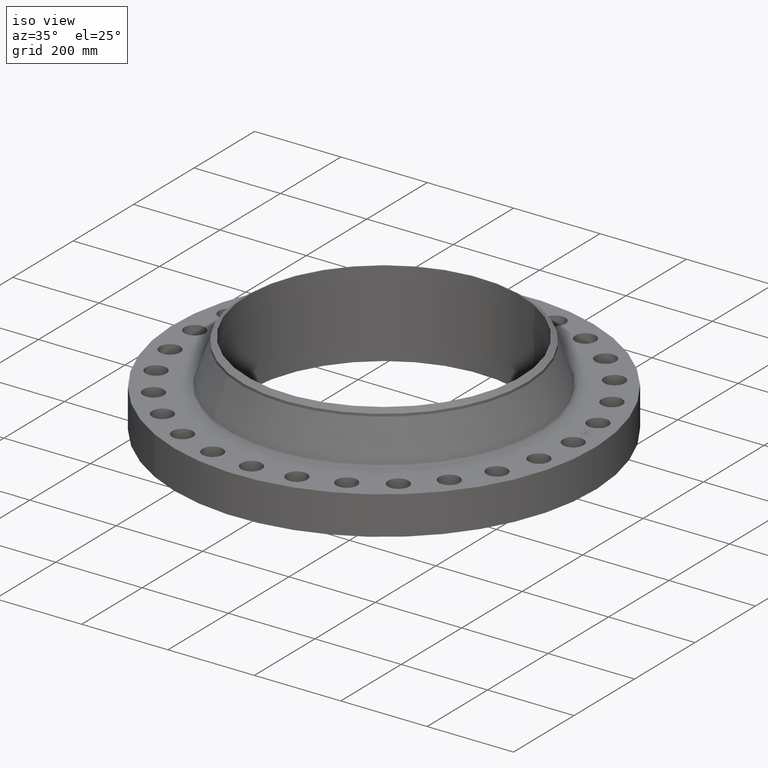
[diagram: clean part render]
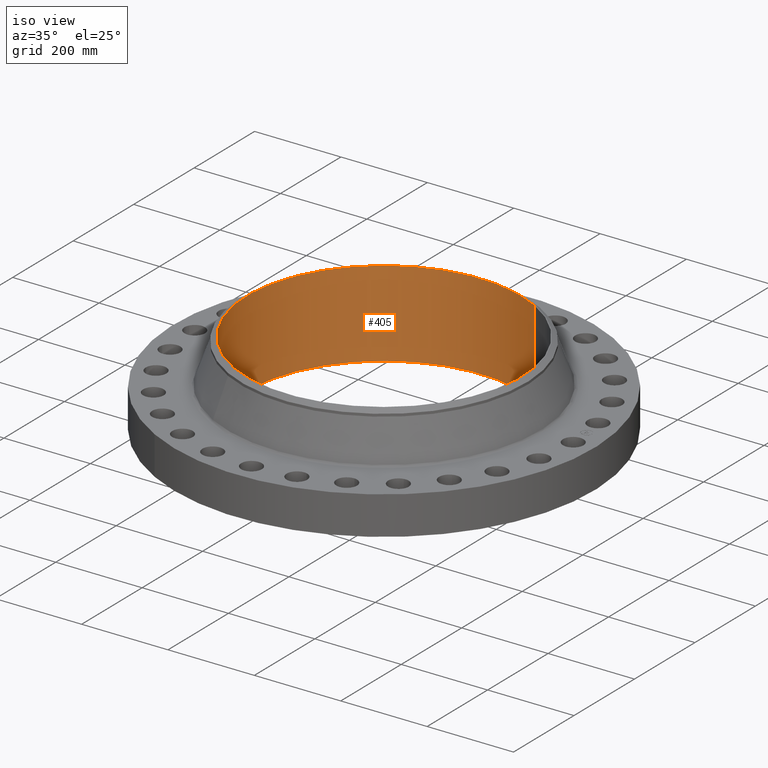
[diagram: tour spotlight — one face highlighted and labeled with its STEP entity id]
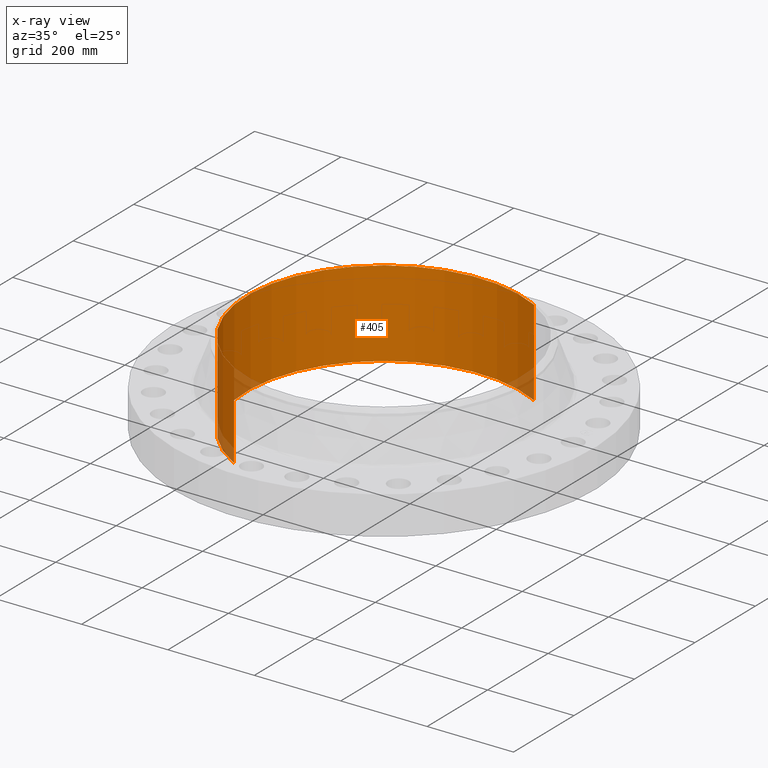
[diagram: x-ray of the same camera — body ghosted, this tour face saturated]
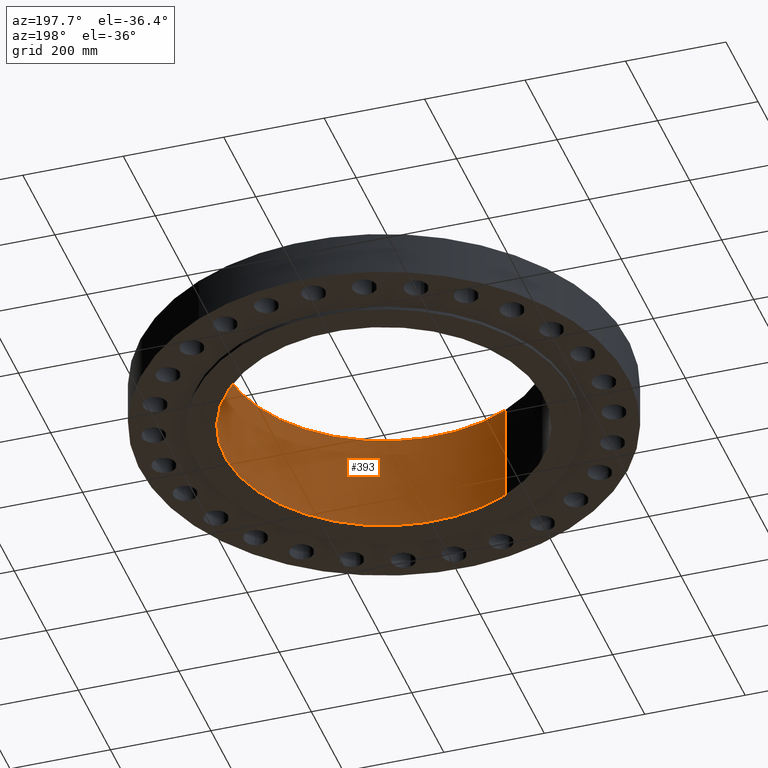
[diagram: tour spotlight — one face highlighted and labeled with its STEP entity id]
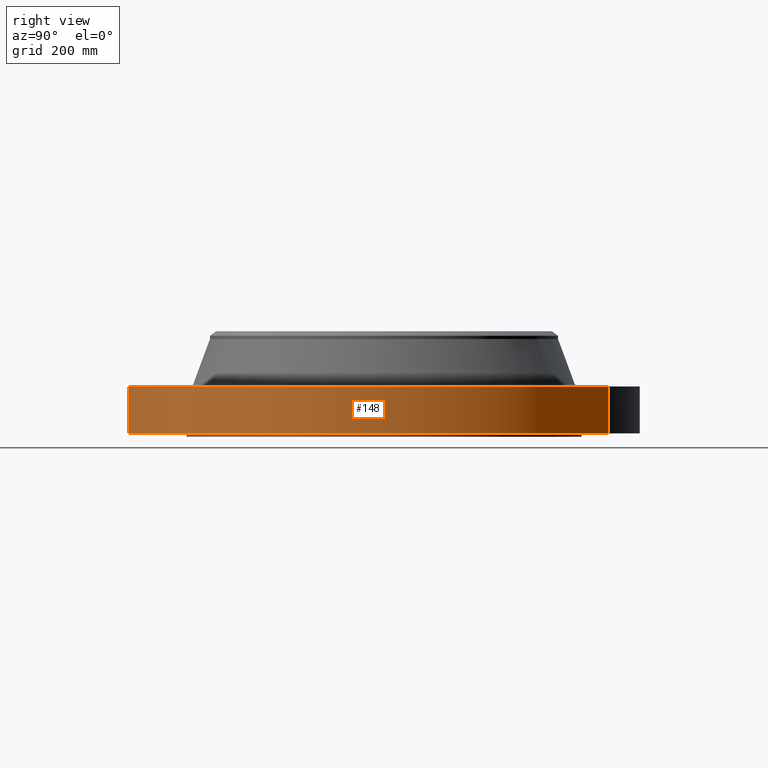
[diagram: tour spotlight — one face highlighted and labeled with its STEP entity id]
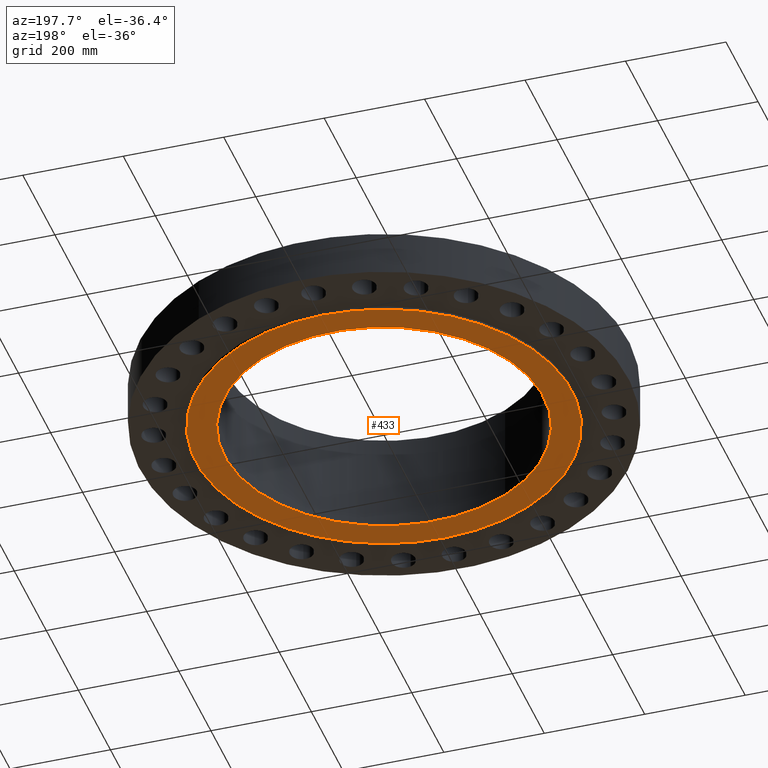
[diagram: tour spotlight — one face highlighted and labeled with its STEP entity id]
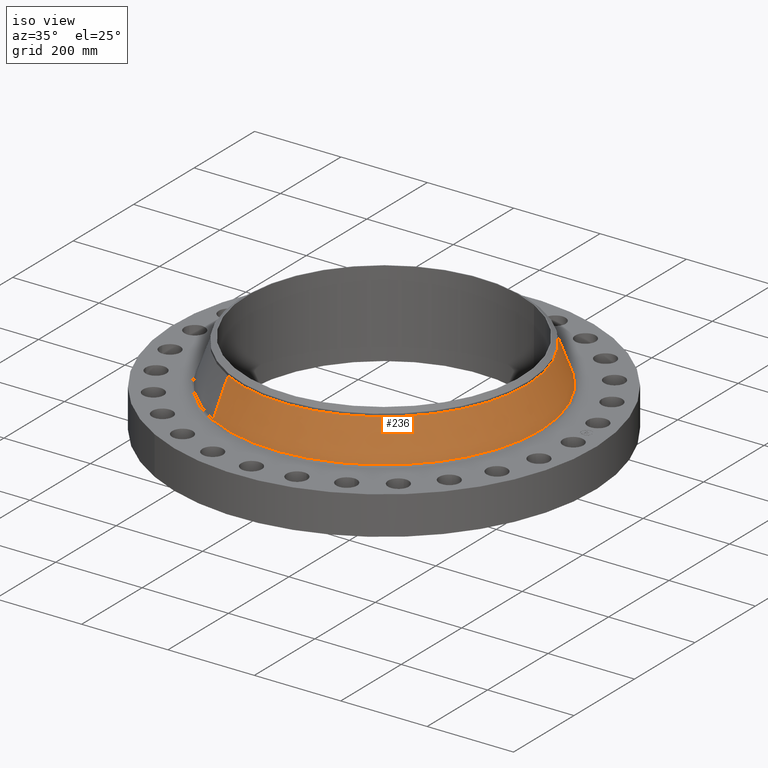
[diagram: tour spotlight — one face highlighted and labeled with its STEP entity id]
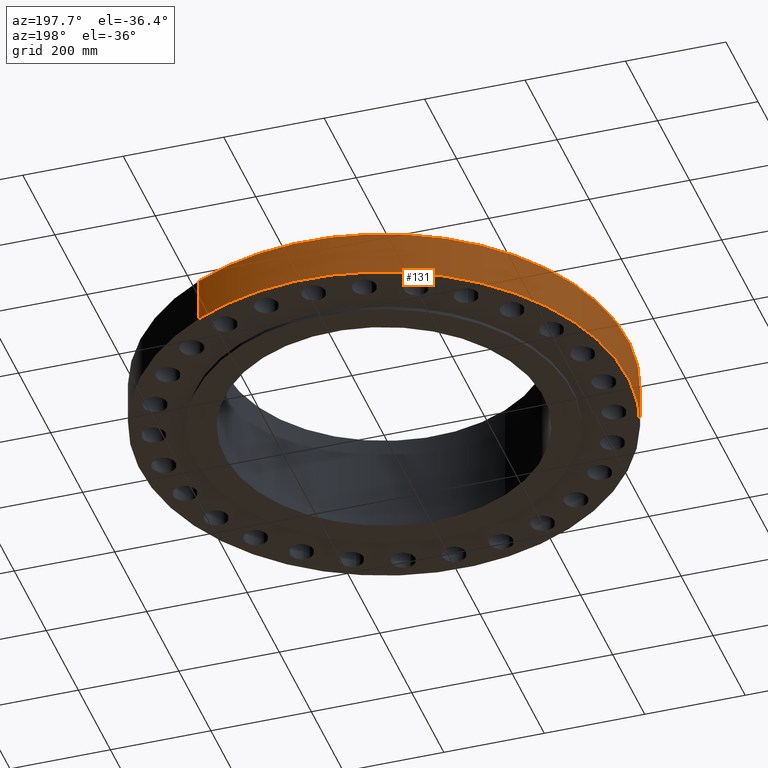
[diagram: tour spotlight — one face highlighted and labeled with its STEP entity id]
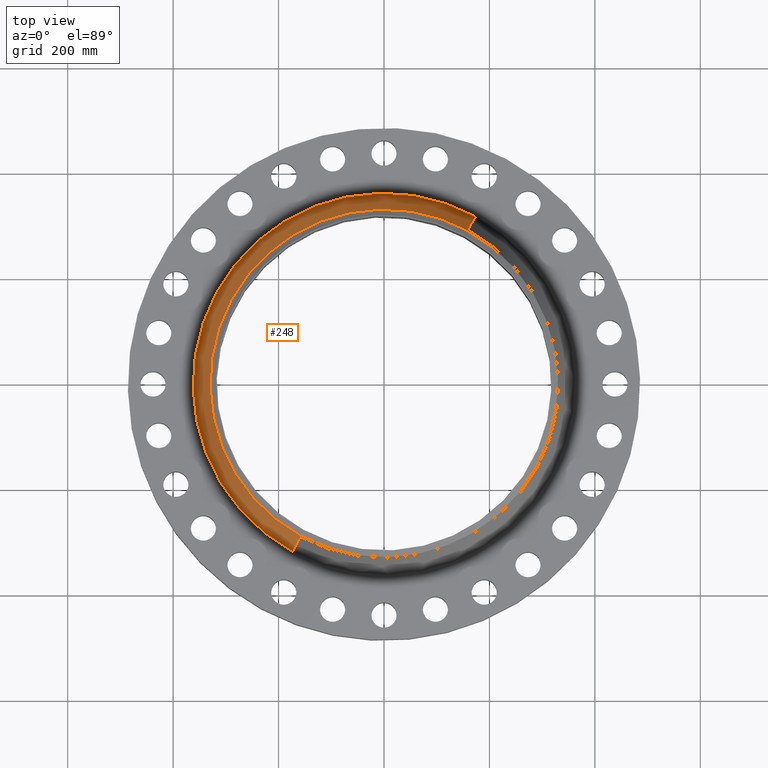
[diagram: tour spotlight — one face highlighted and labeled with its STEP entity id]
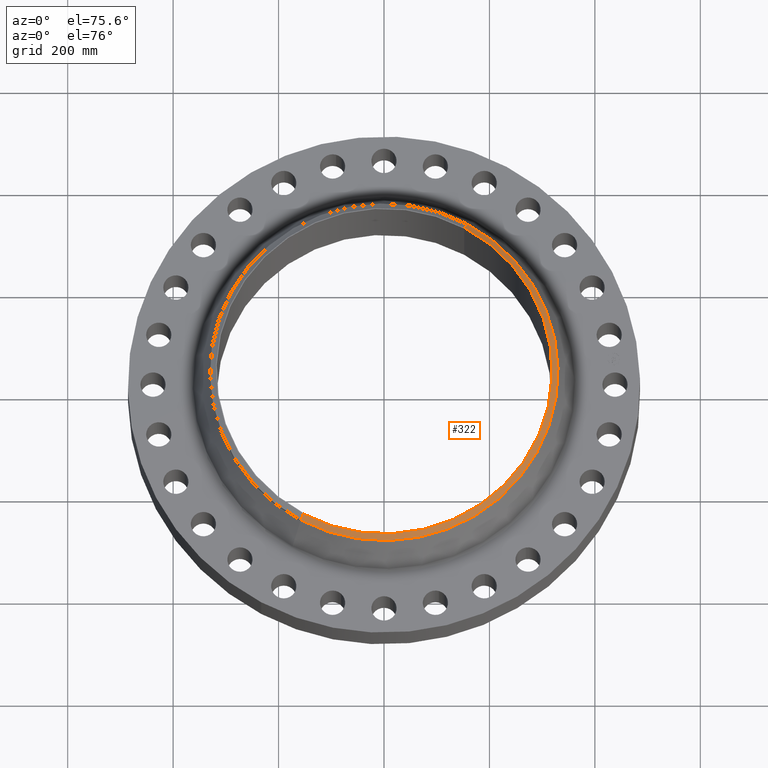
[diagram: tour spotlight — one face highlighted and labeled with its STEP entity id]
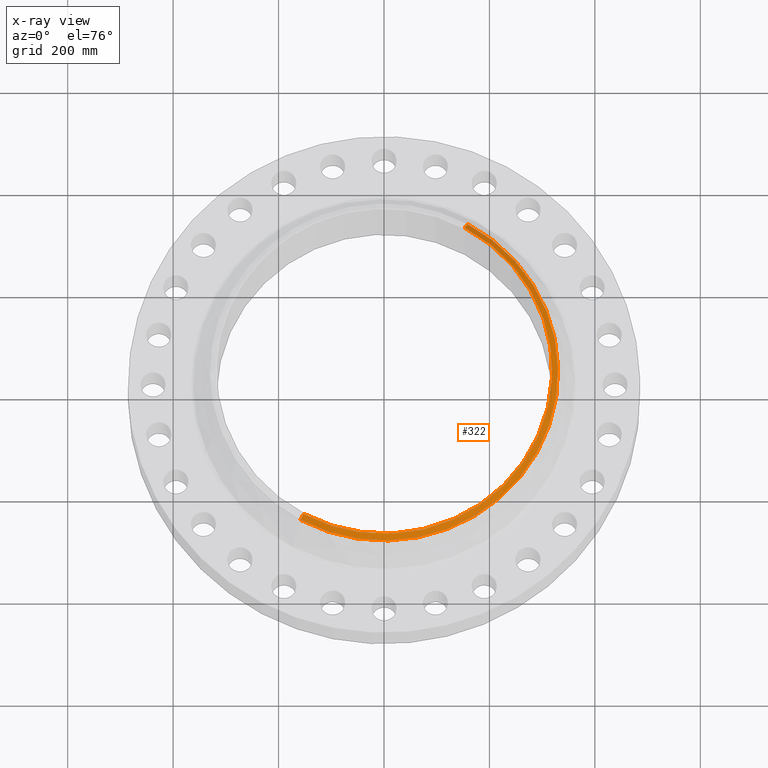
[diagram: x-ray of the same camera — body ghosted, this tour face saturated]
A machine part: a face-by-face anatomy tour. The part has 459 B-rep faces; the first image is the clean iso view, then the 8 largest visible faces are spotlighted one at a time (largest first), each with its STEP entity span.

Face 1 — iso view, entity #405. An x-ray twin of the same camera follows (body ghosted, this face saturated) — the face is partly hidden behind the body. In plain terms, the highlighted cylindrical surface (partial cylindrical patch) has radius 317.5 mm, axis along (0, 0, -1).
Definition (entity closure, byte-faithful):
#346=AXIS2_PLACEMENT_3D('Circle Axis2P3D',#344,#345,$) ;
#366=AXIS2_PLACEMENT_3D('Cylinder Axis2P3D',#363,#364,#365) ;
#396=AXIS2_PLACEMENT_3D('Circle Axis2P3D',#394,#395,$) ;
#344=CARTESIAN_POINT('Axis2P3D Location',(3.35689481461E-015,5.59482469102E-016,7.62000000003)) ;
#348=CARTESIAN_POINT('Vertex',(-5.99281923258,-10.9697820237,7.62000000003)) ;
#350=CARTESIAN_POINT('Vertex',(5.99281923258,10.9697820237,7.62000000003)) ;
#363=CARTESIAN_POINT('Axis2P3D Location',(0.,0.,3.73500000001)) ;
#368=CARTESIAN_POINT('Line Origine',(5.99281923258,10.9697820237,3.68500000001)) ;
#372=CARTESIAN_POINT('Vertex',(5.99281923258,10.9697820237,-0.250000000001)) ;
#379=CARTESIAN_POINT('Vertex',(-5.99281923258,-10.9697820237,-0.250000000001)) ;
#382=CARTESIAN_POINT('Line Origine',(-5.99281923258,-10.9697820237,3.68500000001)) ;
#394=CARTESIAN_POINT('Axis2P3D Location',(0.,0.,-0.250000000001)) ;
#345=DIRECTION('Axis2P3D Direction',(0.,-0.,-0.0393700787402)) ;
#364=DIRECTION('Axis2P3D Direction',(0.,0.,-0.0393700787402)) ;
#365=DIRECTION('Axis2P3D XDirection',(-0.0188750212049,-0.0345504945626,0.)) ;
#369=DIRECTION('Vector Direction',(0.,0.,-0.0393700787402)) ;
#383=DIRECTION('Vector Direction',(0.,0.,-0.0393700787402)) ;
#395=DIRECTION('Axis2P3D Direction',(0.,0.,-0.0393700787402)) ;
#370=VECTOR('Line Direction',#369,0.0393700787402) ;
#384=VECTOR('Line Direction',#383,0.0393700787402) ;
#400=ORIENTED_EDGE('',*,*,#386,.T.) ;
#401=ORIENTED_EDGE('',*,*,#398,.T.) ;
#402=ORIENTED_EDGE('',*,*,#374,.F.) ;
#403=ORIENTED_EDGE('',*,*,#352,.F.) ;
#405=ADVANCED_FACE('PartBody',(#404),#367,.F.) ;
#347=CIRCLE('generated circle',#346,12.5000000001) ;
#397=CIRCLE('generated circle',#396,12.5000000001) ;
#367=CYLINDRICAL_SURFACE('generated cylinder',#366,12.5000000001) ;
#352=EDGE_CURVE('',#349,#351,#347,.T.) ;
#374=EDGE_CURVE('',#351,#373,#371,.T.) ;
#386=EDGE_CURVE('',#349,#380,#385,.T.) ;
#398=EDGE_CURVE('',#380,#373,#397,.T.) ;
#399=EDGE_LOOP('',(#400,#401,#402,#403)) ;
#404=FACE_OUTER_BOUND('',#399,.T.) ;
#371=LINE('Line',#368,#370) ;
#385=LINE('Line',#382,#384) ;
#349=VERTEX_POINT('',#348) ;
#351=VERTEX_POINT('',#350) ;
#373=VERTEX_POINT('',#372) ;
#380=VERTEX_POINT('',#379) ;

Face 2 — auxiliary view, entity #393. In plain terms, the highlighted cylindrical surface (partial cylindrical patch) has radius 317.5 mm, axis along (0, 0, -1).
Definition (entity closure, byte-faithful):
#355=AXIS2_PLACEMENT_3D('Circle Axis2P3D',#353,#354,$) ;
#366=AXIS2_PLACEMENT_3D('Cylinder Axis2P3D',#363,#364,#365) ;
#377=AXIS2_PLACEMENT_3D('Circle Axis2P3D',#375,#376,$) ;
#348=CARTESIAN_POINT('Vertex',(-5.99281923258,-10.9697820237,7.62000000003)) ;
#350=CARTESIAN_POINT('Vertex',(5.99281923258,10.9697820237,7.62000000003)) ;
#353=CARTESIAN_POINT('Axis2P3D Location',(-3.35689481461E-015,-2.51767111096E-015,7.62000000003)) ;
#363=CARTESIAN_POINT('Axis2P3D Location',(0.,0.,3.73500000001)) ;
#368=CARTESIAN_POINT('Line Origine',(5.99281923258,10.9697820237,3.68500000001)) ;
#372=CARTESIAN_POINT('Vertex',(5.99281923258,10.9697820237,-0.250000000001)) ;
#375=CARTESIAN_POINT('Axis2P3D Location',(0.,0.,-0.250000000001)) ;
#379=CARTESIAN_POINT('Vertex',(-5.99281923258,-10.9697820237,-0.250000000001)) ;
#382=CARTESIAN_POINT('Line Origine',(-5.99281923258,-10.9697820237,3.68500000001)) ;
#354=DIRECTION('Axis2P3D Direction',(0.,-0.,-0.0393700787402)) ;
#364=DIRECTION('Axis2P3D Direction',(0.,0.,-0.0393700787402)) ;
#365=DIRECTION('Axis2P3D XDirection',(-0.0188750212049,-0.0345504945626,0.)) ;
#369=DIRECTION('Vector Direction',(0.,0.,-0.0393700787402)) ;
#376=DIRECTION('Axis2P3D Direction',(0.,0.,-0.0393700787402)) ;
#383=DIRECTION('Vector Direction',(0.,0.,-0.0393700787402)) ;
#370=VECTOR('Line Direction',#369,0.0393700787402) ;
#384=VECTOR('Line Direction',#383,0.0393700787402) ;
#388=ORIENTED_EDGE('',*,*,#374,.T.) ;
#389=ORIENTED_EDGE('',*,*,#381,.T.) ;
#390=ORIENTED_EDGE('',*,*,#386,.F.) ;
#391=ORIENTED_EDGE('',*,*,#357,.F.) ;
#393=ADVANCED_FACE('PartBody',(#392),#367,.F.) ;
#356=CIRCLE('generated circle',#355,12.5000000001) ;
#378=CIRCLE('generated circle',#377,12.5000000001) ;
#367=CYLINDRICAL_SURFACE('generated cylinder',#366,12.5000000001) ;
#357=EDGE_CURVE('',#351,#349,#356,.T.) ;
#374=EDGE_CURVE('',#351,#373,#371,.T.) ;
#381=EDGE_CURVE('',#373,#380,#378,.T.) ;
#386=EDGE_CURVE('',#349,#380,#385,.T.) ;
#387=EDGE_LOOP('',(#388,#389,#390,#391)) ;
#392=FACE_OUTER_BOUND('',#387,.T.) ;
#371=LINE('Line',#368,#370) ;
#385=LINE('Line',#382,#384) ;
#349=VERTEX_POINT('',#348) ;
#351=VERTEX_POINT('',#350) ;
#373=VERTEX_POINT('',#372) ;
#380=VERTEX_POINT('',#379) ;

Face 3 — right view, entity #148. In plain terms, the highlighted cylindrical surface (partial cylindrical patch) has radius 485.775 mm, axis along (0, 0, -1).
Definition (entity closure, byte-faithful):
#95=AXIS2_PLACEMENT_3D('Cylinder Axis2P3D',#92,#93,#94) ;
#134=AXIS2_PLACEMENT_3D('Circle Axis2P3D',#132,#133,$) ;
#139=AXIS2_PLACEMENT_3D('Circle Axis2P3D',#137,#138,$) ;
#92=CARTESIAN_POINT('Axis2P3D Location',(0.,0.,3.73500000001)) ;
#101=CARTESIAN_POINT('Vertex',(-9.16901342584,-16.7837664962,2.23792987641E-015)) ;
#103=CARTESIAN_POINT('Vertex',(9.16901342584,16.7837664962,2.23792987641E-015)) ;
#106=CARTESIAN_POINT('Line Origine',(-9.16901342584,-16.7837664962,1.75000000001)) ;
#110=CARTESIAN_POINT('Vertex',(-9.16901342584,-16.7837664962,3.50000000001)) ;
#117=CARTESIAN_POINT('Vertex',(9.16901342584,16.7837664962,3.50000000001)) ;
#120=CARTESIAN_POINT('Line Origine',(9.16901342584,16.7837664962,1.75000000001)) ;
#132=CARTESIAN_POINT('Axis2P3D Location',(0.,0.,2.23792987641E-015)) ;
#137=CARTESIAN_POINT('Axis2P3D Location',(0.,0.,3.50000000001)) ;
#93=DIRECTION('Axis2P3D Direction',(0.,0.,-0.0393700787402)) ;
#94=DIRECTION('Axis2P3D XDirection',(0.0188750212049,0.0345504945626,0.)) ;
#107=DIRECTION('Vector Direction',(0.,0.,-0.0393700787402)) ;
#121=DIRECTION('Vector Direction',(0.,0.,-0.0393700787402)) ;
#133=DIRECTION('Axis2P3D Direction',(0.,0.,-0.0393700787402)) ;
#138=DIRECTION('Axis2P3D Direction',(0.,0.,-0.0393700787402)) ;
#108=VECTOR('Line Direction',#107,0.0393700787402) ;
#122=VECTOR('Line Direction',#121,0.0393700787402) ;
#143=ORIENTED_EDGE('',*,*,#136,.F.) ;
#144=ORIENTED_EDGE('',*,*,#124,.T.) ;
#145=ORIENTED_EDGE('',*,*,#141,.T.) ;
#146=ORIENTED_EDGE('',*,*,#112,.F.) ;
#148=ADVANCED_FACE('PartBody',(#147),#96,.T.) ;
#135=CIRCLE('generated circle',#134,19.1250000001) ;
#140=CIRCLE('generated circle',#139,19.1250000001) ;
#96=CYLINDRICAL_SURFACE('generated cylinder',#95,19.1250000001) ;
#112=EDGE_CURVE('',#102,#111,#109,.F.) ;
#124=EDGE_CURVE('',#104,#118,#123,.F.) ;
#136=EDGE_CURVE('',#104,#102,#135,.T.) ;
#141=EDGE_CURVE('',#118,#111,#140,.T.) ;
#142=EDGE_LOOP('',(#143,#144,#145,#146)) ;
#147=FACE_OUTER_BOUND('',#142,.T.) ;
#109=LINE('Line',#106,#108) ;
#123=LINE('Line',#120,#122) ;
#102=VERTEX_POINT('',#101) ;
#104=VERTEX_POINT('',#103) ;
#111=VERTEX_POINT('',#110) ;
#118=VERTEX_POINT('',#117) ;

Face 4 — auxiliary view, entity #433. In plain terms, the highlighted planar face has unit normal (0, 0, -1).
Definition (entity closure, byte-faithful):
#377=AXIS2_PLACEMENT_3D('Circle Axis2P3D',#375,#376,$) ;
#396=AXIS2_PLACEMENT_3D('Circle Axis2P3D',#394,#395,$) ;
#409=AXIS2_PLACEMENT_3D('Plane Axis2P3D',#406,#407,#408) ;
#413=AXIS2_PLACEMENT_3D('Circle Axis2P3D',#411,#412,$) ;
#422=AXIS2_PLACEMENT_3D('Circle Axis2P3D',#420,#421,$) ;
#372=CARTESIAN_POINT('Vertex',(5.99281923258,10.9697820237,-0.250000000001)) ;
#375=CARTESIAN_POINT('Axis2P3D Location',(0.,0.,-0.250000000001)) ;
#379=CARTESIAN_POINT('Vertex',(-5.99281923258,-10.9697820237,-0.250000000001)) ;
#394=CARTESIAN_POINT('Axis2P3D Location',(0.,0.,-0.250000000001)) ;
#406=CARTESIAN_POINT('Axis2P3D Location',(0.,12.5000000001,-0.250000000001)) ;
#411=CARTESIAN_POINT('Axis2P3D Location',(0.,0.,-0.250000000001)) ;
#415=CARTESIAN_POINT('Vertex',(-7.07152669444,-12.9443427879,-0.250000000001)) ;
#417=CARTESIAN_POINT('Vertex',(7.07152669444,12.9443427879,-0.250000000001)) ;
#420=CARTESIAN_POINT('Axis2P3D Location',(0.,0.,-0.250000000001)) ;
#376=DIRECTION('Axis2P3D Direction',(0.,0.,-0.0393700787402)) ;
#395=DIRECTION('Axis2P3D Direction',(0.,0.,-0.0393700787402)) ;
#407=DIRECTION('Axis2P3D Direction',(0.,0.,-0.0393700787402)) ;
#408=DIRECTION('Axis2P3D XDirection',(0.0393700787402,0.,0.)) ;
#412=DIRECTION('Axis2P3D Direction',(0.,0.,-0.0393700787402)) ;
#421=DIRECTION('Axis2P3D Direction',(0.,0.,-0.0393700787402)) ;
#426=ORIENTED_EDGE('',*,*,#419,.T.) ;
#427=ORIENTED_EDGE('',*,*,#424,.T.) ;
#430=ORIENTED_EDGE('',*,*,#381,.F.) ;
#431=ORIENTED_EDGE('',*,*,#398,.F.) ;
#432=FACE_BOUND('',#429,.T.) ;
#433=ADVANCED_FACE('PartBody',(#428,#432),#410,.T.) ;
#378=CIRCLE('generated circle',#377,12.5000000001) ;
#397=CIRCLE('generated circle',#396,12.5000000001) ;
#414=CIRCLE('generated circle',#413,14.7500000001) ;
#423=CIRCLE('generated circle',#422,14.7500000001) ;
#381=EDGE_CURVE('',#373,#380,#378,.T.) ;
#398=EDGE_CURVE('',#380,#373,#397,.T.) ;
#419=EDGE_CURVE('',#416,#418,#414,.T.) ;
#424=EDGE_CURVE('',#418,#416,#423,.T.) ;
#425=EDGE_LOOP('',(#426,#427)) ;
#429=EDGE_LOOP('',(#430,#431)) ;
#428=FACE_OUTER_BOUND('',#425,.T.) ;
#410=PLANE('',#409) ;
#373=VERTEX_POINT('',#372) ;
#380=VERTEX_POINT('',#379) ;
#416=VERTEX_POINT('',#415) ;
#418=VERTEX_POINT('',#417) ;

Face 5 — iso view, entity #236. In plain terms, the highlighted conical surface has half-angle 20.265 deg.
Definition (entity closure, byte-faithful):
#172=AXIS2_PLACEMENT_3D('Circle Axis2P3D',#170,#171,$) ;
#209=AXIS2_PLACEMENT_3D('Cone Axis2P3D',#206,#207,#208) ;
#220=AXIS2_PLACEMENT_3D('Circle Axis2P3D',#218,#219,$) ;
#167=CARTESIAN_POINT('Vertex',(6.83165414578,12.5052590328,3.66340985787)) ;
#170=CARTESIAN_POINT('Axis2P3D Location',(0.,0.,3.66340985787)) ;
#174=CARTESIAN_POINT('Vertex',(-6.83165414578,-12.5052590328,3.66340985787)) ;
#206=CARTESIAN_POINT('Axis2P3D Location',(0.,0.,7.04807397035)) ;
#211=CARTESIAN_POINT('Line Origine',(6.53209307383,11.9569161687,5.35574191411)) ;
#215=CARTESIAN_POINT('Vertex',(6.23253200188,11.4085733046,7.04807397035)) ;
#218=CARTESIAN_POINT('Axis2P3D Location',(0.,0.,7.04807397035)) ;
#222=CARTESIAN_POINT('Vertex',(-6.23253200188,-11.4085733046,7.04807397035)) ;
#225=CARTESIAN_POINT('Line Origine',(-6.53209307383,-11.9569161687,5.35574191411)) ;
#171=DIRECTION('Axis2P3D Direction',(0.,0.,-0.0393700787402)) ;
#207=DIRECTION('Axis2P3D Direction',(0.,0.,-0.0393700787402)) ;
#208=DIRECTION('Axis2P3D XDirection',(-0.0188750212049,-0.0345504945626,0.)) ;
#212=DIRECTION('Vector Direction',(0.00653756307629,0.0119669289411,-0.0369331284993)) ;
#219=DIRECTION('Axis2P3D Direction',(0.,0.,-0.0393700787402)) ;
#226=DIRECTION('Vector Direction',(-0.00653756307629,-0.0119669289411,-0.0369331284993)) ;
#213=VECTOR('Line Direction',#212,0.0393700787402) ;
#227=VECTOR('Line Direction',#226,0.0393700787402) ;
#231=ORIENTED_EDGE('',*,*,#176,.F.) ;
#232=ORIENTED_EDGE('',*,*,#217,.T.) ;
#233=ORIENTED_EDGE('',*,*,#224,.T.) ;
#234=ORIENTED_EDGE('',*,*,#229,.F.) ;
#236=ADVANCED_FACE('PartBody',(#235),#210,.T.) ;
#173=CIRCLE('generated circle',#172,14.2496667275) ;
#221=CIRCLE('generated circle',#220,13.0000000001) ;
#210=CONICAL_SURFACE('Cone',#209,13.0000000001,0.35368874015) ;
#176=EDGE_CURVE('',#168,#175,#173,.T.) ;
#217=EDGE_CURVE('',#168,#216,#214,.F.) ;
#224=EDGE_CURVE('',#216,#223,#221,.T.) ;
#229=EDGE_CURVE('',#175,#223,#228,.F.) ;
#230=EDGE_LOOP('',(#231,#232,#233,#234)) ;
#235=FACE_OUTER_BOUND('',#230,.T.) ;
#214=LINE('Line',#211,#213) ;
#228=LINE('Line',#225,#227) ;
#168=VERTEX_POINT('',#167) ;
#175=VERTEX_POINT('',#174) ;
#216=VERTEX_POINT('',#215) ;
#223=VERTEX_POINT('',#222) ;

Face 6 — auxiliary view, entity #131. In plain terms, the highlighted cylindrical surface (partial cylindrical patch) has radius 485.775 mm, axis along (0, 0, -1).
Definition (entity closure, byte-faithful):
#95=AXIS2_PLACEMENT_3D('Cylinder Axis2P3D',#92,#93,#94) ;
#99=AXIS2_PLACEMENT_3D('Circle Axis2P3D',#97,#98,$) ;
#115=AXIS2_PLACEMENT_3D('Circle Axis2P3D',#113,#114,$) ;
#92=CARTESIAN_POINT('Axis2P3D Location',(0.,0.,3.73500000001)) ;
#97=CARTESIAN_POINT('Axis2P3D Location',(0.,0.,2.23792987641E-015)) ;
#101=CARTESIAN_POINT('Vertex',(-9.16901342584,-16.7837664962,2.23792987641E-015)) ;
#103=CARTESIAN_POINT('Vertex',(9.16901342584,16.7837664962,2.23792987641E-015)) ;
#106=CARTESIAN_POINT('Line Origine',(-9.16901342584,-16.7837664962,1.75000000001)) ;
#110=CARTESIAN_POINT('Vertex',(-9.16901342584,-16.7837664962,3.50000000001)) ;
#113=CARTESIAN_POINT('Axis2P3D Location',(0.,0.,3.50000000001)) ;
#117=CARTESIAN_POINT('Vertex',(9.16901342584,16.7837664962,3.50000000001)) ;
#120=CARTESIAN_POINT('Line Origine',(9.16901342584,16.7837664962,1.75000000001)) ;
#93=DIRECTION('Axis2P3D Direction',(0.,0.,-0.0393700787402)) ;
#94=DIRECTION('Axis2P3D XDirection',(0.0188750212049,0.0345504945626,0.)) ;
#98=DIRECTION('Axis2P3D Direction',(0.,0.,-0.0393700787402)) ;
#107=DIRECTION('Vector Direction',(0.,0.,-0.0393700787402)) ;
#114=DIRECTION('Axis2P3D Direction',(0.,0.,-0.0393700787402)) ;
#121=DIRECTION('Vector Direction',(0.,0.,-0.0393700787402)) ;
#108=VECTOR('Line Direction',#107,0.0393700787402) ;
#122=VECTOR('Line Direction',#121,0.0393700787402) ;
#126=ORIENTED_EDGE('',*,*,#105,.F.) ;
#127=ORIENTED_EDGE('',*,*,#112,.T.) ;
#128=ORIENTED_EDGE('',*,*,#119,.T.) ;
#129=ORIENTED_EDGE('',*,*,#124,.F.) ;
#131=ADVANCED_FACE('PartBody',(#130),#96,.T.) ;
#100=CIRCLE('generated circle',#99,19.1250000001) ;
#116=CIRCLE('generated circle',#115,19.1250000001) ;
#96=CYLINDRICAL_SURFACE('generated cylinder',#95,19.1250000001) ;
#105=EDGE_CURVE('',#102,#104,#100,.T.) ;
#112=EDGE_CURVE('',#102,#111,#109,.F.) ;
#119=EDGE_CURVE('',#111,#118,#116,.T.) ;
#124=EDGE_CURVE('',#104,#118,#123,.F.) ;
#125=EDGE_LOOP('',(#126,#127,#128,#129)) ;
#130=FACE_OUTER_BOUND('',#125,.T.) ;
#109=LINE('Line',#106,#108) ;
#123=LINE('Line',#120,#122) ;
#102=VERTEX_POINT('',#101) ;
#104=VERTEX_POINT('',#103) ;
#111=VERTEX_POINT('',#110) ;
#118=VERTEX_POINT('',#117) ;

Face 7 — top view, entity #248. In plain terms, the highlighted conical surface has half-angle 20.265 deg.
Definition (entity closure, byte-faithful):
#196=AXIS2_PLACEMENT_3D('Circle Axis2P3D',#194,#195,$) ;
#209=AXIS2_PLACEMENT_3D('Cone Axis2P3D',#206,#207,#208) ;
#239=AXIS2_PLACEMENT_3D('Circle Axis2P3D',#237,#238,$) ;
#167=CARTESIAN_POINT('Vertex',(6.83165414578,12.5052590328,3.66340985787)) ;
#174=CARTESIAN_POINT('Vertex',(-6.83165414578,-12.5052590328,3.66340985787)) ;
#194=CARTESIAN_POINT('Axis2P3D Location',(0.,0.,3.66340985787)) ;
#206=CARTESIAN_POINT('Axis2P3D Location',(0.,0.,7.04807397035)) ;
#211=CARTESIAN_POINT('Line Origine',(6.53209307383,11.9569161687,5.35574191411)) ;
#215=CARTESIAN_POINT('Vertex',(6.23253200188,11.4085733046,7.04807397035)) ;
#222=CARTESIAN_POINT('Vertex',(-6.23253200188,-11.4085733046,7.04807397035)) ;
#225=CARTESIAN_POINT('Line Origine',(-6.53209307383,-11.9569161687,5.35574191411)) ;
#237=CARTESIAN_POINT('Axis2P3D Location',(0.,0.,7.04807397035)) ;
#195=DIRECTION('Axis2P3D Direction',(0.,0.,-0.0393700787402)) ;
#207=DIRECTION('Axis2P3D Direction',(0.,0.,-0.0393700787402)) ;
#208=DIRECTION('Axis2P3D XDirection',(-0.0188750212049,-0.0345504945626,0.)) ;
#212=DIRECTION('Vector Direction',(0.00653756307629,0.0119669289411,-0.0369331284993)) ;
#226=DIRECTION('Vector Direction',(-0.00653756307629,-0.0119669289411,-0.0369331284993)) ;
#238=DIRECTION('Axis2P3D Direction',(0.,0.,-0.0393700787402)) ;
#213=VECTOR('Line Direction',#212,0.0393700787402) ;
#227=VECTOR('Line Direction',#226,0.0393700787402) ;
#243=ORIENTED_EDGE('',*,*,#198,.F.) ;
#244=ORIENTED_EDGE('',*,*,#229,.T.) ;
#245=ORIENTED_EDGE('',*,*,#241,.T.) ;
#246=ORIENTED_EDGE('',*,*,#217,.F.) ;
#248=ADVANCED_FACE('PartBody',(#247),#210,.T.) ;
#197=CIRCLE('generated circle',#196,14.2496667275) ;
#240=CIRCLE('generated circle',#239,13.0000000001) ;
#210=CONICAL_SURFACE('Cone',#209,13.0000000001,0.35368874015) ;
#198=EDGE_CURVE('',#175,#168,#197,.T.) ;
#217=EDGE_CURVE('',#168,#216,#214,.F.) ;
#229=EDGE_CURVE('',#175,#223,#228,.F.) ;
#241=EDGE_CURVE('',#223,#216,#240,.T.) ;
#242=EDGE_LOOP('',(#243,#244,#245,#246)) ;
#247=FACE_OUTER_BOUND('',#242,.T.) ;
#214=LINE('Line',#211,#213) ;
#228=LINE('Line',#225,#227) ;
#168=VERTEX_POINT('',#167) ;
#175=VERTEX_POINT('',#174) ;
#216=VERTEX_POINT('',#215) ;
#223=VERTEX_POINT('',#222) ;

Face 8 — auxiliary view, entity #322. An x-ray twin of the same camera follows (body ghosted, this face saturated) — the face is partly hidden behind the body. In plain terms, the highlighted conical surface has half-angle 52.5 deg.
Definition (entity closure, byte-faithful):
#270=AXIS2_PLACEMENT_3D('Circle Axis2P3D',#268,#269,$) ;
#295=AXIS2_PLACEMENT_3D('Cone Axis2P3D',#292,#293,#294) ;
#306=AXIS2_PLACEMENT_3D('Circle Axis2P3D',#304,#305,$) ;
#258=CARTESIAN_POINT('Vertex',(-6.23253200188,-11.4085733046,7.28429444279)) ;
#265=CARTESIAN_POINT('Vertex',(6.23253200188,11.4085733046,7.28429444279)) ;
#268=CARTESIAN_POINT('Axis2P3D Location',(0.,0.,7.28429444279)) ;
#292=CARTESIAN_POINT('Axis2P3D Location',(0.,0.,7.62000000003)) ;
#297=CARTESIAN_POINT('Line Origine',(6.12765766531,11.2166021192,7.45214722141)) ;
#301=CARTESIAN_POINT('Vertex',(6.02278332874,11.0246309338,7.62000000003)) ;
#304=CARTESIAN_POINT('Axis2P3D Location',(0.,0.,7.62000000003)) ;
#308=CARTESIAN_POINT('Vertex',(-6.02278332874,-11.0246309338,7.62000000003)) ;
#311=CARTESIAN_POINT('Line Origine',(-6.12765766531,-11.2166021192,7.45214722141)) ;
#269=DIRECTION('Axis2P3D Direction',(0.,0.,-0.0393700787402)) ;
#293=DIRECTION('Axis2P3D Direction',(-0.,-0.,-0.0393700787402)) ;
#294=DIRECTION('Axis2P3D XDirection',(-0.0188750212049,-0.0345504945626,0.)) ;
#298=DIRECTION('Vector Direction',(0.014974561121,0.02741075027,-0.023966985394)) ;
#305=DIRECTION('Axis2P3D Direction',(0.,-0.,-0.0393700787402)) ;
#312=DIRECTION('Vector Direction',(-0.014974561121,-0.02741075027,-0.023966985394)) ;
#299=VECTOR('Line Direction',#298,0.0393700787402) ;
#313=VECTOR('Line Direction',#312,0.0393700787402) ;
#317=ORIENTED_EDGE('',*,*,#303,.F.) ;
#318=ORIENTED_EDGE('',*,*,#310,.T.) ;
#319=ORIENTED_EDGE('',*,*,#315,.T.) ;
#320=ORIENTED_EDGE('',*,*,#272,.F.) ;
#322=ADVANCED_FACE('PartBody',(#321),#296,.T.) ;
#271=CIRCLE('generated circle',#270,13.0000000001) ;
#307=CIRCLE('generated circle',#306,12.5625000001) ;
#296=CONICAL_SURFACE('Cone',#295,12.5625000001,0.916297857297) ;
#272=EDGE_CURVE('',#266,#259,#271,.T.) ;
#303=EDGE_CURVE('',#302,#266,#300,.T.) ;
#310=EDGE_CURVE('',#302,#309,#307,.T.) ;
#315=EDGE_CURVE('',#309,#259,#314,.T.) ;
#316=EDGE_LOOP('',(#317,#318,#319,#320)) ;
#321=FACE_OUTER_BOUND('',#316,.T.) ;
#300=LINE('Line',#297,#299) ;
#314=LINE('Line',#311,#313) ;
#259=VERTEX_POINT('',#258) ;
#266=VERTEX_POINT('',#265) ;
#302=VERTEX_POINT('',#301) ;
#309=VERTEX_POINT('',#308) ;